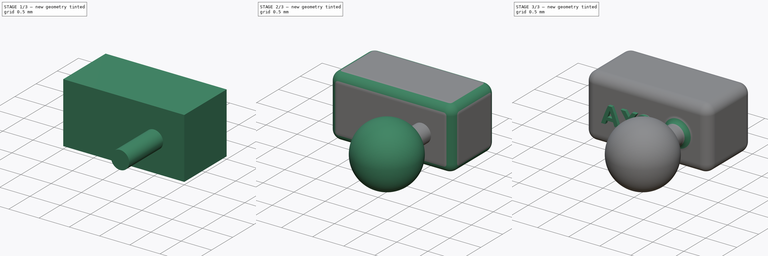
[diagram: build sequence overview — one tinted view per stage of 3, left to right]
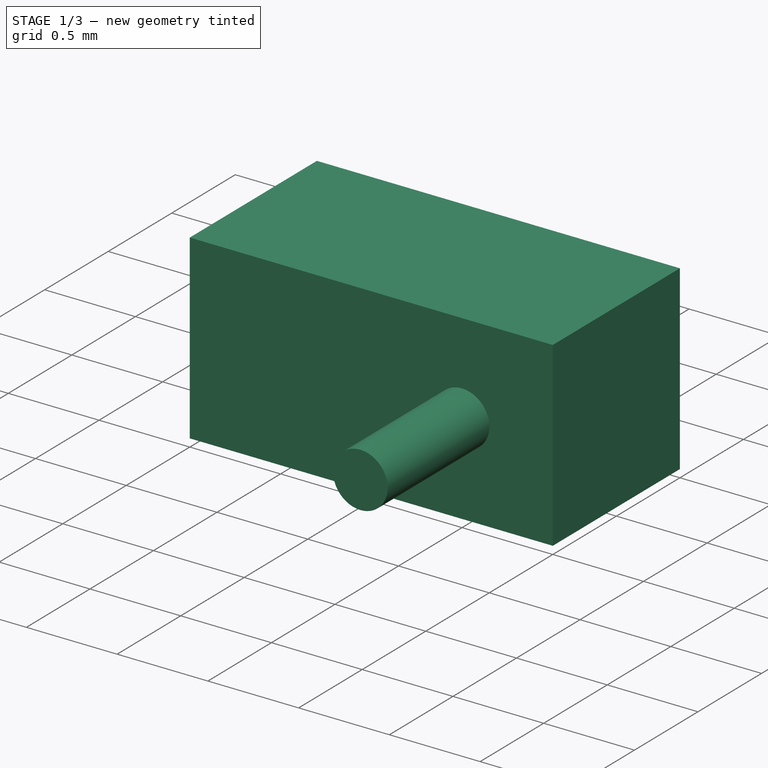
[diagram: stage 1 of 3 — iso view after this stage's code; geometry added in this stage tinted green]
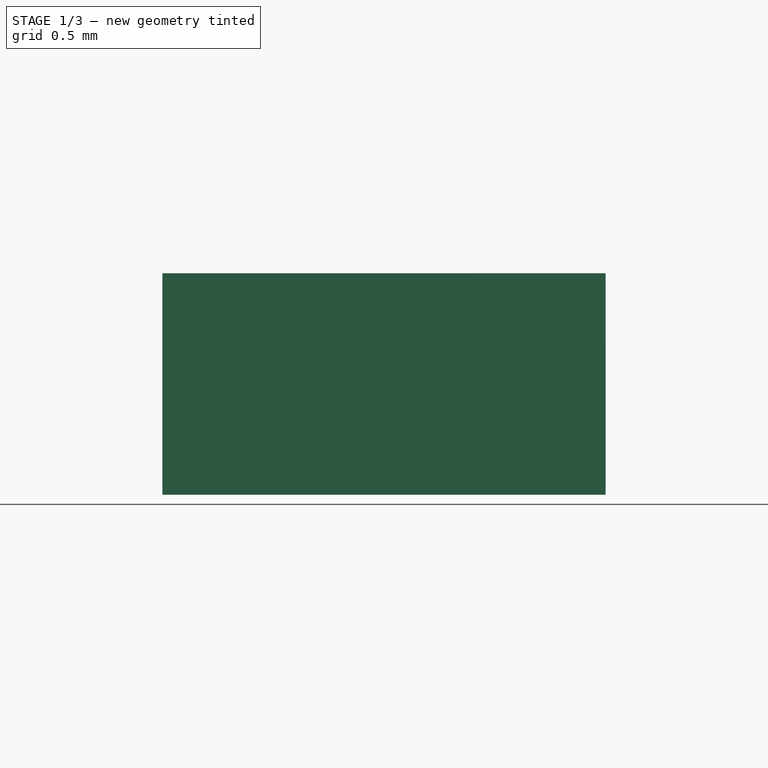
[diagram: stage 1 of 3 — front view after this stage's code; geometry added in this stage tinted green]
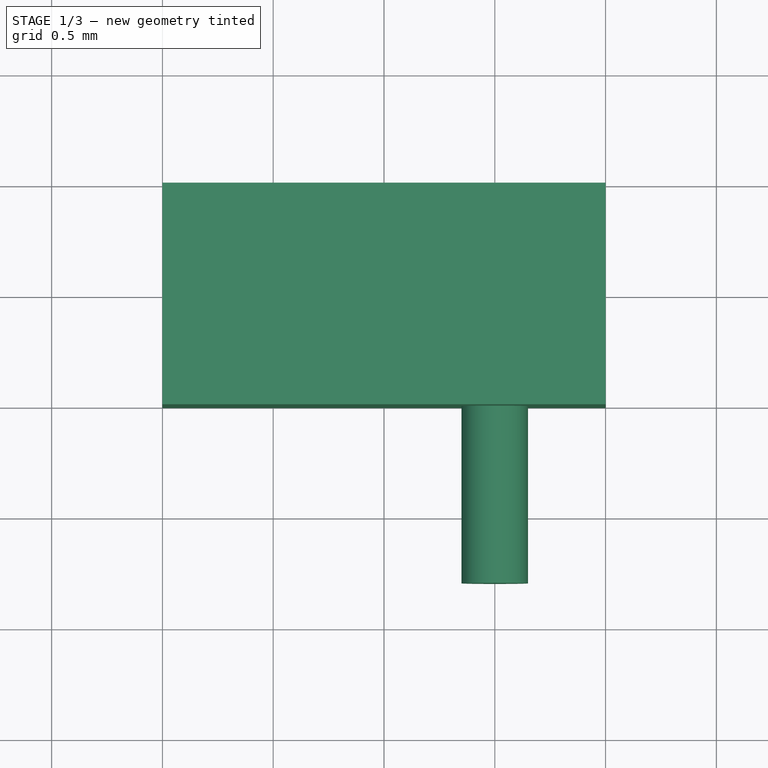
[diagram: stage 1 of 3 — top view after this stage's code; geometry added in this stage tinted green]
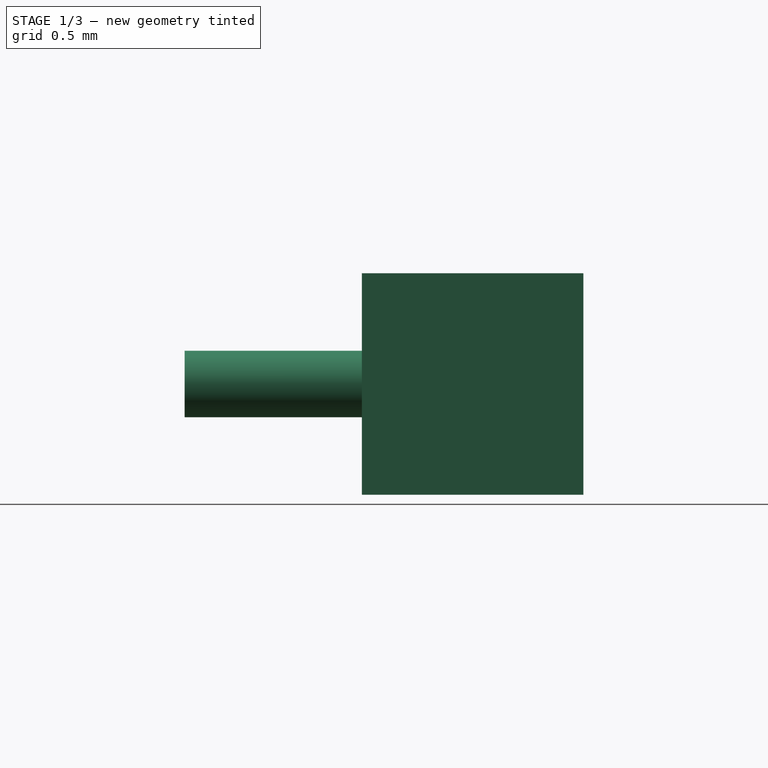
[diagram: stage 1 of 3 — right view after this stage's code; geometry added in this stage tinted green]
FCSTD DOCUMENT  (FreeCAD 0.20R29177 (Git))
Label: ax2
License: All rights reserved
LicenseURL: http://en.wikipedia.org/wiki/All_rights_reserved
objects: Sketcher::SketchObject×3, PartDesign::Pad×3, PartDesign::Plane×2, PartDesign::Fillet×2, Spreadsheet::Sheet×1, PartDesign::Line×1, PartDesign::Revolution×1, Part::Part2DObjectPython×1, PartDesign::Body×1
note: 20 computed .brp shape members not serialized (recipe doc carries the construction recipe); baked Part::Feature solids carry a one-line shape summary decoded from their .brp

FEATURE [Spreadsheet::Sheet] Spreadsheet
  cells = A2=Design Parameters; A3=RefLength; B3(RefLength)==1mm; A4=Length; B4(Length)==RefLength * 2; A5=Width; B5(Width)==RefLength * 1; A6=Height; B6(Height)==RefLength * 1; A7=BallJointConnDatumPlaneOffset; B7(BallJointConnDatumPlaneOffset)==0.5 * Width; A8=BallJointDatumPlaneOffset; B8(BallJointDatumPlaneOffset)==BallJointConnDatumPlaneOffset + BallJointConnLength + 0.5 * BallJointDiam; A9=BallJointDiam; B9(BallJointDiam)==RefLength; A10=BallJointConnDiam; B10(BallJointConnDiam)==0.3 * RefLength; A11=BallJointConnLength; B11(BallJointConnLength)==0.3 * RefLength; A12=BallJointConnPadLength; B12(BallJointConnPadLength)==BallJointConnLength + 0.5 * BallJointDiam; A13=DistCenterToBallJoint; B13(DistCenterToBallJoint)==0.5 * Length - 0.5 * BallJointDiam; A14=EdgeFilletRadius; B14(EdgeFilletRadius)==0.15 * RefLength; A15=BallJointConnFilletRadius; B15(BallJointConnFilletRadius)==0.1 * RefLength; A16=LabelPadHeight; B16(LabelPadHeight)==0.05 * RefLength; A17=LabelString; B17(LabelString)=AX2
FEATURE [Sketcher::SketchObject] Sketch  label="MainBlockSketch"
  FullyConstrained = true
  MapMode = 5
  Support = -> [XY_Plane]
  expr: Constraints[10] = Spreadsheet.Width
  expr: Constraints[9] = Spreadsheet.Length
  sketch-geometry (4):
    g0: LineSegment StartX=-1 StartY=0.5 StartZ=0 EndX=1 EndY=0.5 EndZ=0
    g1: LineSegment StartX=1 StartY=0.5 StartZ=0 EndX=1 EndY=-0.5 EndZ=0
    g2: LineSegment StartX=1 StartY=-0.5 StartZ=0 EndX=-1 EndY=-0.5 EndZ=0
    g3: LineSegment StartX=-1 StartY=-0.5 StartZ=0 EndX=-1 EndY=0.5 EndZ=0
  constraints (11):
    c: Coincident(g0,g1)
    c: Coincident(g1,g2)
    c: Coincident(g2,g3)
    c: Coincident(g3,g0)
    c: Horizontal(g0)
    c: Horizontal(g2)
    c: Vertical(g1)
    c: Vertical(g3)
    c: Symmetric(g0,g1,g-1)
    c: DistanceX(g2,g2) = 2
    c: DistanceY(g1,g1) = 1
FEATURE [PartDesign::Pad] Pad
  Direction = (0,0,1)
  Length = 1
  Length2 = 10
  Midplane = true
  Profile = -> Sketch
  ReferenceAxis = -> Sketch [N_Axis]
  Type = 0
  expr: Length = Spreadsheet.Height
FEATURE [PartDesign::Plane] DatumPlane  label="BallJointConnDatumPlane"
  AttachmentOffset = pos=(0,0,0.5) rot=(0,0,1;0rad)
  Length = 60
  MapMode = 5
  Placement = pos=(0,-0.5,-1e-16) rot=(1,0,0;1.5708rad)
  ResizeMode = 0
  Support = -> [XZ_Plane]
  Width = 60
  expr: .AttachmentOffset.Base.z = Spreadsheet.BallJointConnDatumPlaneOffset
FEATURE [Sketcher::SketchObject] Sketch001  label=" BallJointConnSketch"
  FullyConstrained = true
  MapMode = 5
  Placement = pos=(0,-0.5,-1e-16) rot=(1,0,0;1.5708rad)
  Support = -> [DatumPlane]
  expr: Constraints[2] = Spreadsheet.DistCenterToBallJoint
  expr: Constraints[4] = Spreadsheet.BallJointConnDiam
  sketch-geometry (2):
    g0: LineSegment StartX=0 StartY=0 StartZ=0 EndX=0.5 EndY=0 EndZ=0
    g1: Circle CenterX=0.5 CenterY=0 CenterZ=0 NormalX=0 NormalY=0 NormalZ=1 AngleXU=0 Radius=0.15
  constraints (5):
    c: Horizontal(g0)
    c: Coincident(g-1,g0)
    c: DistanceX(g0,g0) = 0.5
    c: Coincident(g1,g0)
    c: Diameter(g1) = 0.3
FEATURE [PartDesign::Pad] Pad001  label="BallJointConnPad"
  BaseFeature = -> Pad
  Direction = (0,-1,-2e-16)
  Length = 0.8
  Length2 = 10
  Profile = -> Sketch001
  ReferenceAxis = -> Sketch001 [N_Axis]
  Type = 0
  expr: Length = Spreadsheet.BallJointConnPadLength
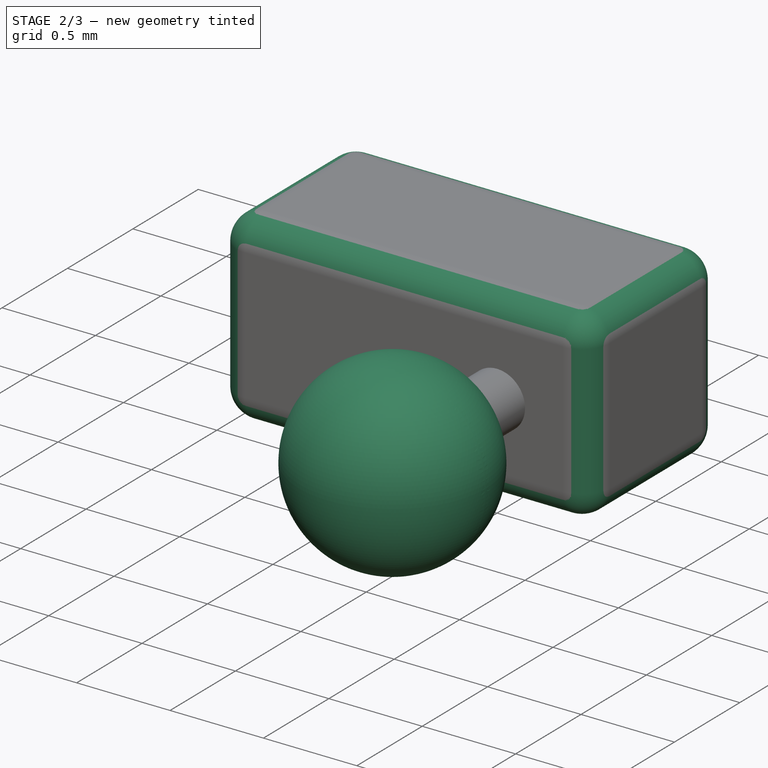
[diagram: stage 2 of 3 — iso view after this stage's code; geometry added in this stage tinted green]
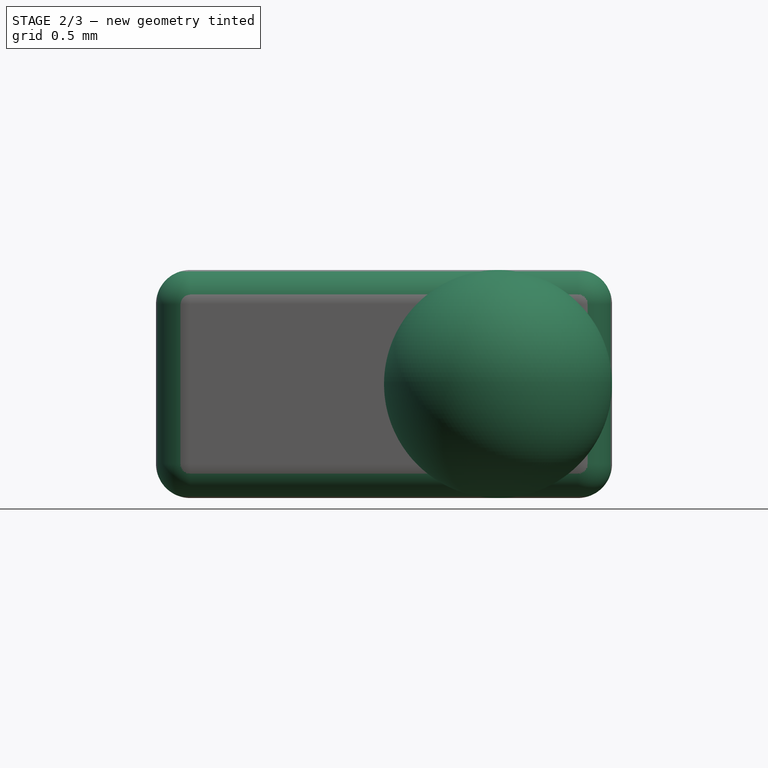
[diagram: stage 2 of 3 — front view after this stage's code; geometry added in this stage tinted green]
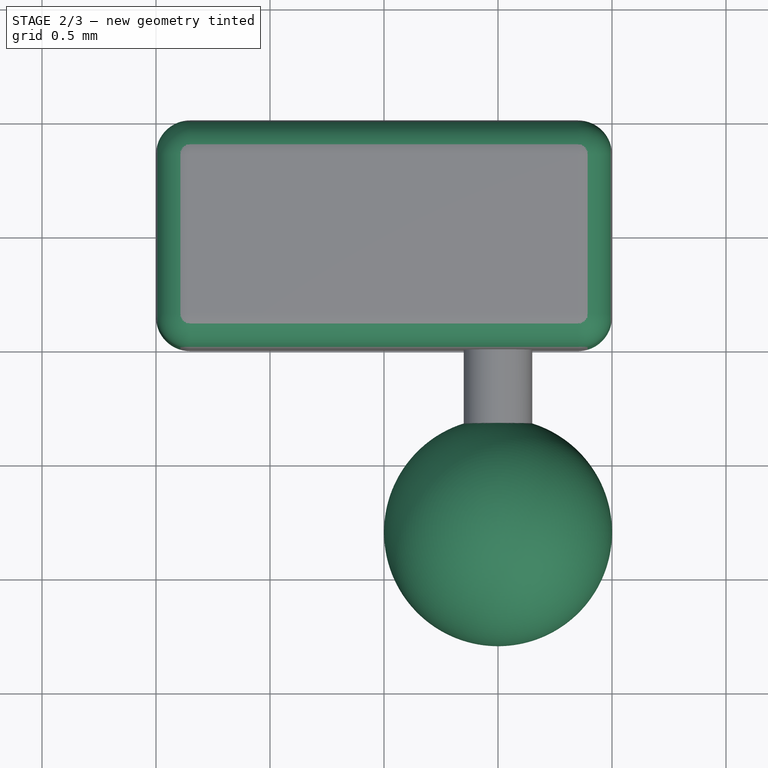
[diagram: stage 2 of 3 — top view after this stage's code; geometry added in this stage tinted green]
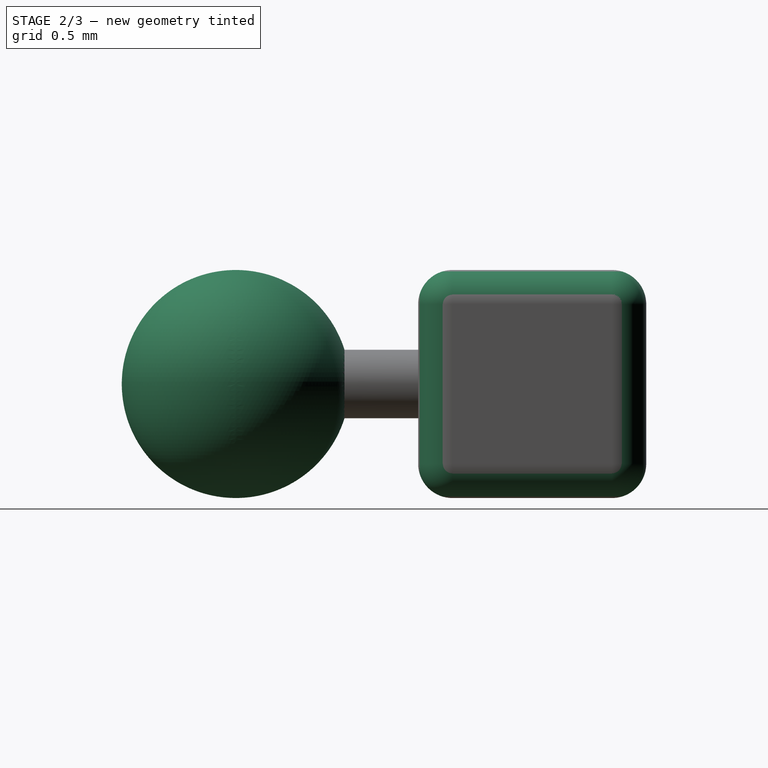
[diagram: stage 2 of 3 — right view after this stage's code; geometry added in this stage tinted green]
FEATURE [PartDesign::Plane] DatumPlane001  label="BallJointDatumPlane"
  AttachmentOffset = pos=(0,0,1.3) rot=(0,0,1;0rad)
  Length = 60
  MapMode = 5
  Placement = pos=(0,-1.3,-3e-16) rot=(1,0,0;1.5708rad)
  ResizeMode = 0
  Support = -> [XZ_Plane]
  Width = 60
  expr: .AttachmentOffset.Base.z = Spreadsheet.BallJointDatumPlaneOffset
FEATURE [Sketcher::SketchObject] Sketch002  label="BallJointSketch"
  FullyConstrained = true
  MapMode = 5
  Placement = pos=(0,-1.3,-3e-16) rot=(1,0,0;1.5708rad)
  Support = -> [DatumPlane001]
  expr: Constraints[10] = Spreadsheet.BallJointDiam
  expr: Constraints[2] = Spreadsheet.DistCenterToBallJoint
  sketch-geometry (4):
    g0: LineSegment StartX=0 StartY=0 StartZ=0 EndX=0.5 EndY=0 EndZ=0
    g1: ArcOfCircle CenterX=0.5 CenterY=0 CenterZ=0 NormalX=0 NormalY=0 NormalZ=1 AngleXU=0 Radius=0.5 StartAngle=4.71239 EndAngle=7.85398
    g2: LineSegment StartX=0.5 StartY=0.5 StartZ=0 EndX=0.5 EndY=0 EndZ=0
    g3: LineSegment StartX=0.5 StartY=0 StartZ=0 EndX=0.5 EndY=-0.5 EndZ=0
  constraints (11):
    c: Horizontal(g0)
    c: Coincident(g-1,g0)
    c: DistanceX(g0,g0) = 0.5
    c: Coincident(g0,g1)
    c: Coincident(g2,g1)
    c: Coincident(g2,g1)
    c: Vertical(g2)
    c: Coincident(g3,g1)
    c: Coincident(g3,g1)
    c: Vertical(g3)
    c: DistanceY(g1,g1) = 1
FEATURE [PartDesign::Line] DatumLine  label="BallJointRevolveDataLine"
  AttacherType = Attacher::AttachEngineLine
  Length = 20
  MapMode = 29
  Placement = pos=(0.5,-1.3,-3e-16) rot=(0,1,0;3.14159rad)
  ResizeMode = 0
  Support = -> [Sketch002]
FEATURE [PartDesign::Revolution] Revolution  label="BallJointRevolution"
  Angle = 360
  Axis = (-1e-16,4e-16,-1)
  Base = (0.5,-1.3,-3e-16)
  BaseFeature = -> Pad001
  Profile = -> Sketch002
  ReferenceAxis = -> DatumLine
  Reversed = true
FEATURE [PartDesign::Fillet] Fillet  label="EdgeFillet"
  Base = -> Revolution [Edge7,Edge12,Edge10,Edge4,Edge5,Edge6,Edge1,Edge11,Edge3,Edge9,Edge2,Edge8]
  BaseFeature = -> Revolution
  Radius = 0.15
  SupportTransform = false
  UseAllEdges = false
  expr: Radius = Spreadsheet.EdgeFilletRadius
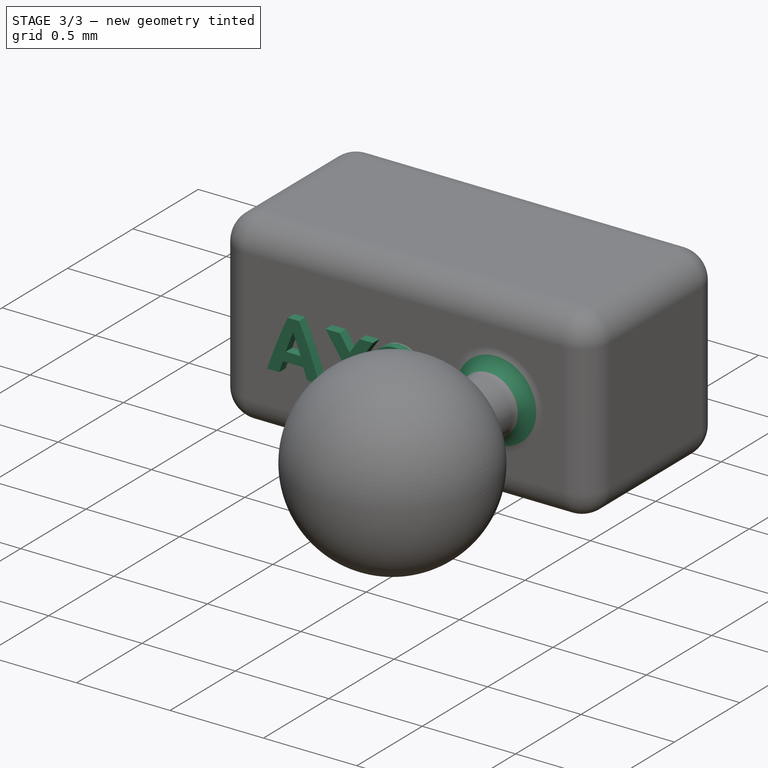
[diagram: stage 3 of 3 — iso view after this stage's code; geometry added in this stage tinted green]
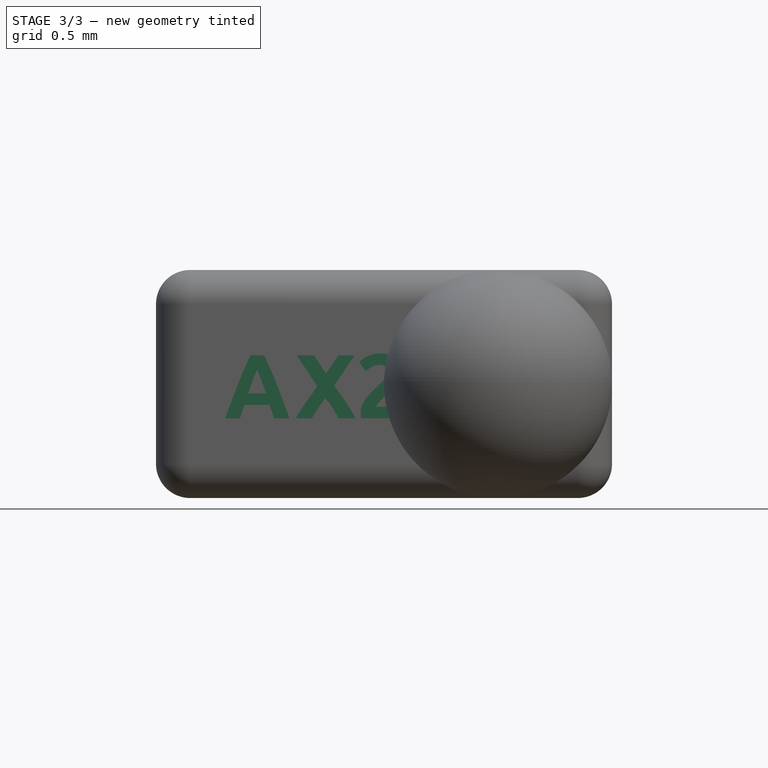
[diagram: stage 3 of 3 — front view after this stage's code; geometry added in this stage tinted green]
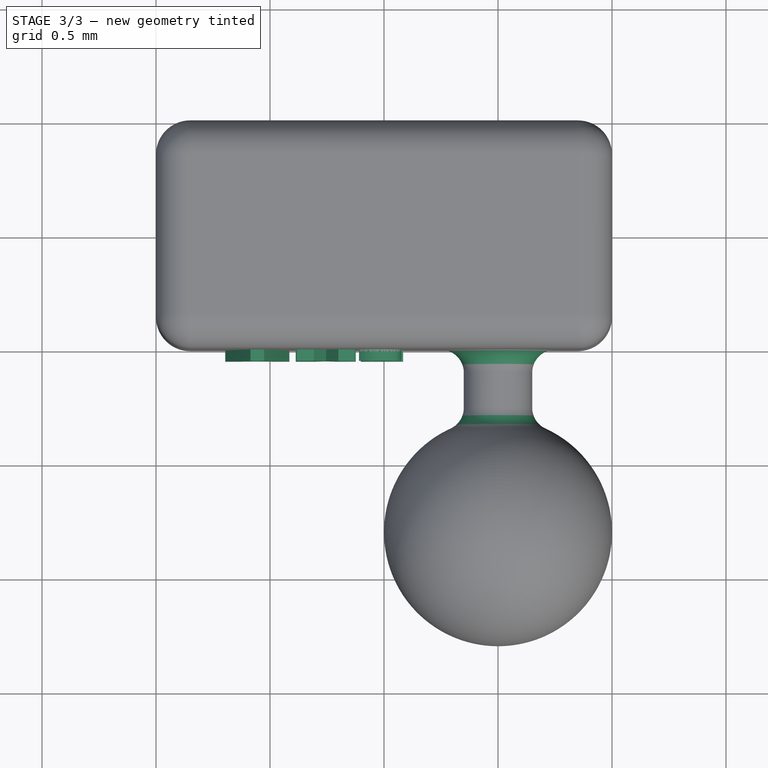
[diagram: stage 3 of 3 — top view after this stage's code; geometry added in this stage tinted green]
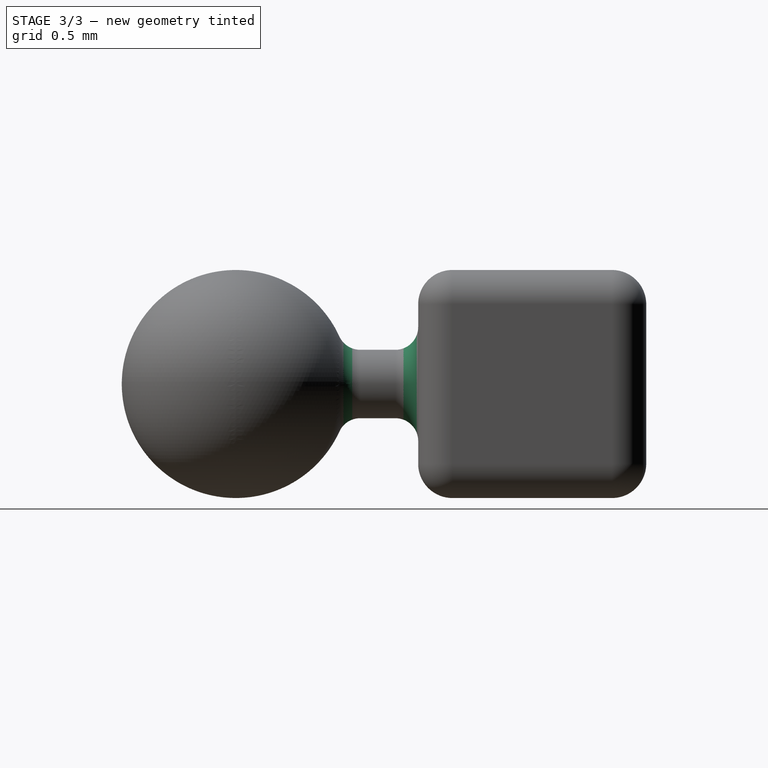
[diagram: stage 3 of 3 — right view after this stage's code; geometry added in this stage tinted green]
FEATURE [PartDesign::Fillet] Fillet001  label="BallJointConnFillet"
  Base = -> Fillet [Edge55,Edge59]
  BaseFeature = -> Fillet
  Radius = 0.1
  SupportTransform = false
  UseAllEdges = false
  expr: Radius = Spreadsheet.BallJointConnFilletRadius
FEATURE [Part::Part2DObjectPython] ShapeString  # Draft 2D object (typed FeaturePython)
  FontFile = ./font/Ubuntu-B.ttf
  MakeFace = true
  Placement = pos=(-0.7,-0.5,-0.15) rot=(1,0,0;1.5708rad)
  Size = 0.15
  String = AX2
  Tracking = 0
  expr: .Placement.Base.x = Spreadsheet.RefLength * -0.7
  expr: .Placement.Base.y = -Spreadsheet.Height * 0.5
  expr: .Placement.Base.z = Spreadsheet.RefLength * -0.15
  expr: String = Spreadsheet.LabelString
FEATURE [PartDesign::Pad] Pad002
  BaseFeature = -> Fillet001
  Direction = (0,-1,2e-16)
  Length = 0.05
  Length2 = 10
  Profile = -> ShapeString
  ReferenceAxis = -> ShapeString [N_Axis]
  Type = 0
  expr: Length = Spreadsheet.LabelPadHeight
FEATURE [PartDesign::Body] Body
  Group = -> [Sketch,Pad,DatumPlane,Sketch001,Pad001,DatumPlane001,Sketch002,DatumLine,Revolution,Fillet,Fillet001,ShapeString,Pad002]
  Origin = -> Origin
  Tip = -> Pad002
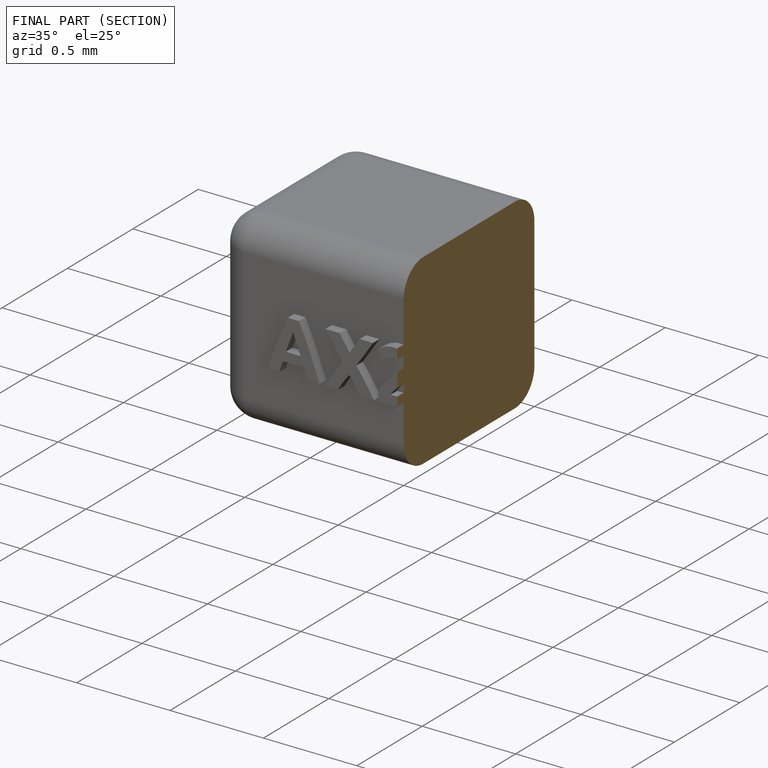
[diagram: finished part — half-section view (interior)]
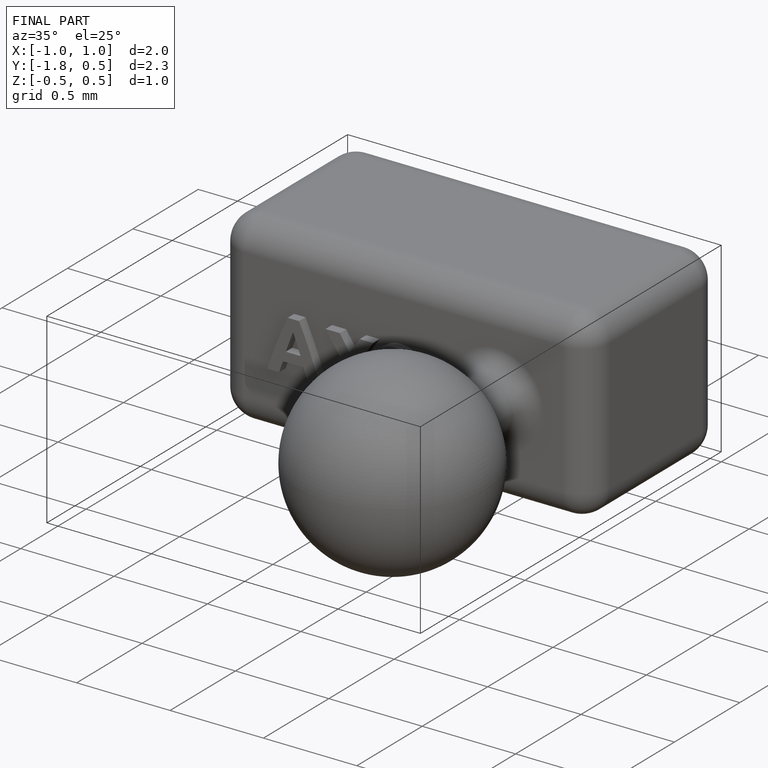
[diagram: finished part — iso view with bounding-box wireframe]
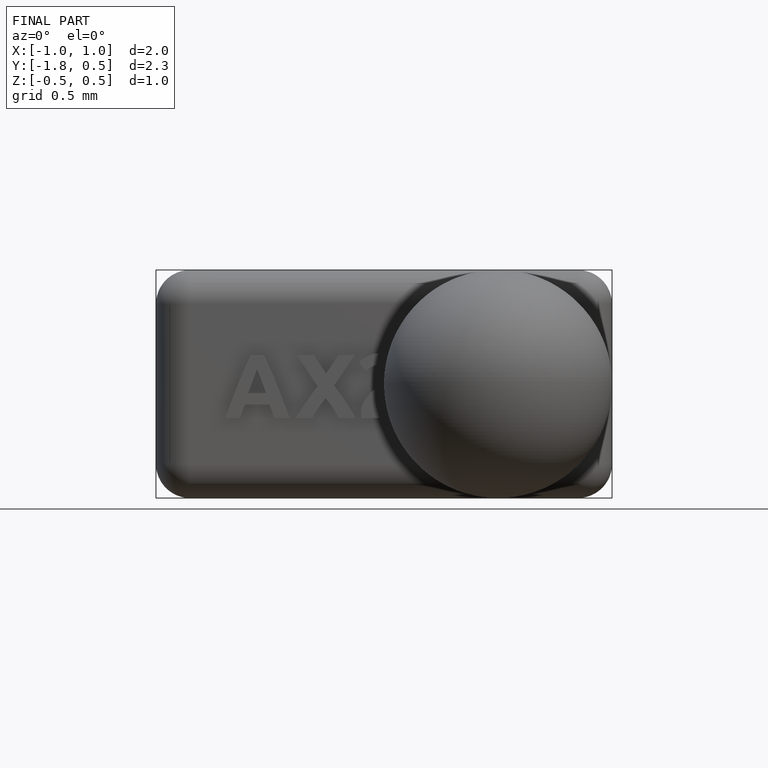
[diagram: finished part — front view with bounding-box wireframe]
